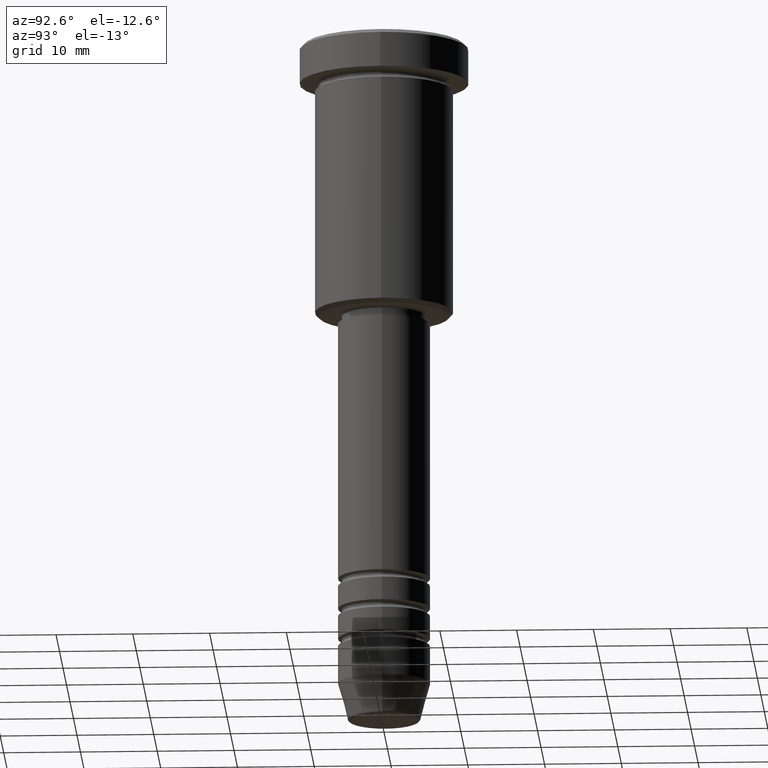
[diagram: clean part render]
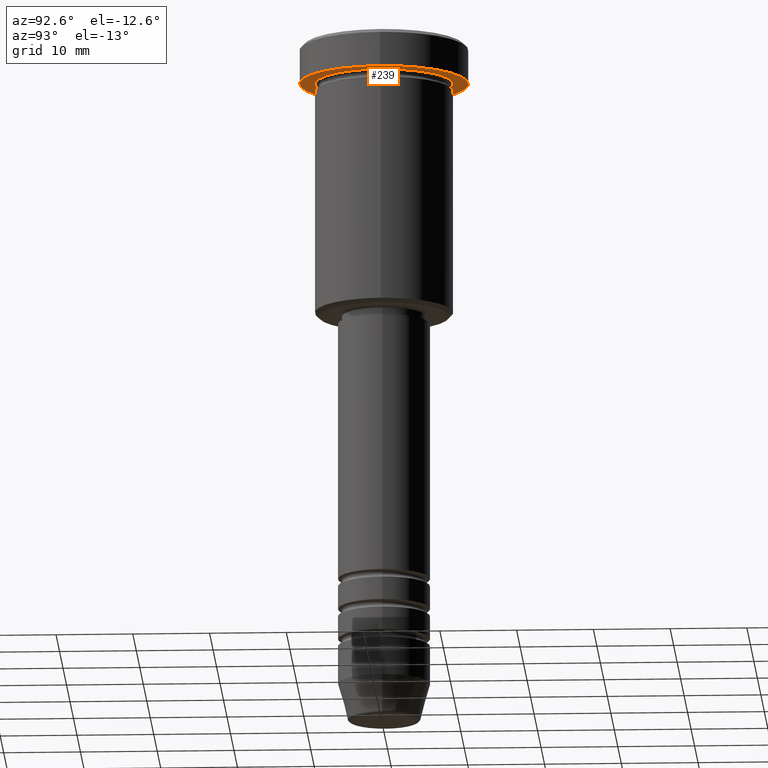
[diagram: same view with one face highlighted and labeled with its STEP entity id]
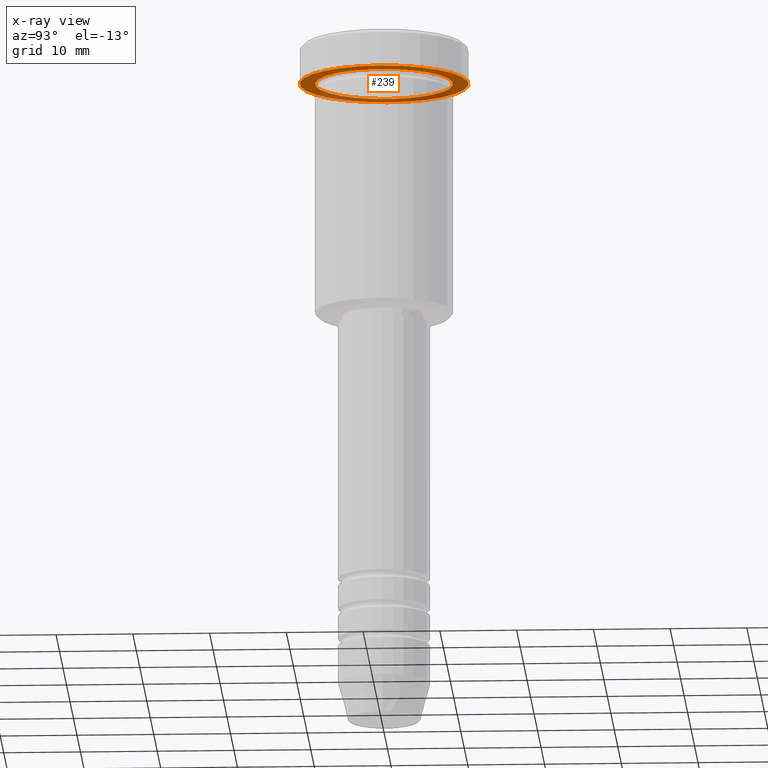
[diagram: x-ray of the same camera — body ghosted, the highlighted face saturated]
A machine part, auxiliary view. The second image highlights one B-rep face of the part: STEP entity #239.
The next image is the same camera in x-ray: the body ghosted, the highlighted face saturated — about 30% of this face is hidden behind the body in this view.
In plain terms, the highlighted planar face has unit normal (0, 0, -1).
Its self-contained STEP definition (entity closure, byte-faithful):
#47 = DIRECTION ( 'NONE',  ( 1.000000000000000000, 0.000000000000000000, 0.000000000000000000 ) ) ;
#50 = AXIS2_PLACEMENT_3D ( 'NONE', #569, #860, #47 ) ;
#84 = EDGE_LOOP ( 'NONE', ( #1122, #542 ) ) ;
#86 = AXIS2_PLACEMENT_3D ( 'NONE', #808, #1175, #173 ) ;
#104 = DIRECTION ( 'NONE',  ( -1.000000000000000000, 0.000000000000000000, -0.000000000000000000 ) ) ;
#111 = CARTESIAN_POINT ( 'NONE',  ( 0.000000000000000000, 11.00000000000000000, -5.000000000000000000 ) ) ;
#126 = VERTEX_POINT ( 'NONE', #723 ) ;
#151 = CARTESIAN_POINT ( 'NONE',  ( 9.000000000000000000, 1.102182119232617714E-15, -4.999999999999999112 ) ) ;
#173 = DIRECTION ( 'NONE',  ( -1.000000000000000000, 0.000000000000000000, 0.000000000000000000 ) ) ;
#185 = FACE_OUTER_BOUND ( 'NONE', #441, .T. ) ;
#187 = ORIENTED_EDGE ( 'NONE', *, *, #666, .F. ) ;
#205 = CARTESIAN_POINT ( 'NONE',  ( 0.000000000000000000, 0.000000000000000000, -5.000000000000000000 ) ) ;
#239 = ADVANCED_FACE ( 'NONE', ( #761, #185 ), #929, .T. ) ;
#303 = DIRECTION ( 'NONE',  ( 1.000000000000000000, 0.000000000000000000, 0.000000000000000000 ) ) ;
#325 = VERTEX_POINT ( 'NONE', #1051 ) ;
#394 = AXIS2_PLACEMENT_3D ( 'NONE', #417, #884, #982 ) ;
#417 = CARTESIAN_POINT ( 'NONE',  ( 0.000000000000000000, 0.000000000000000000, -5.000000000000000000 ) ) ;
#441 = EDGE_LOOP ( 'NONE', ( #774, #187 ) ) ;
#451 = VERTEX_POINT ( 'NONE', #765 ) ;
#501 = VERTEX_POINT ( 'NONE', #151 ) ;
#504 = CIRCLE ( 'NONE', #394, 9.000000000000000000 ) ;
#521 = AXIS2_PLACEMENT_3D ( 'NONE', #111, #651, #104 ) ;
#542 = ORIENTED_EDGE ( 'NONE', *, *, #1021, .T. ) ;
#546 = CIRCLE ( 'NONE', #50, 11.00000000000000000 ) ;
#569 = CARTESIAN_POINT ( 'NONE',  ( 0.000000000000000000, 0.000000000000000000, -5.000000000000000000 ) ) ;
#624 = AXIS2_PLACEMENT_3D ( 'NONE', #205, #906, #303 ) ;
#626 = CIRCLE ( 'NONE', #86, 9.000000000000000000 ) ;
#651 = DIRECTION ( 'NONE',  ( 0.000000000000000000, 0.000000000000000000, -1.000000000000000000 ) ) ;
#666 = EDGE_CURVE ( 'NONE', #451, #325, #1142, .T. ) ;
#722 = EDGE_CURVE ( 'NONE', #325, #451, #546, .T. ) ;
#723 = CARTESIAN_POINT ( 'NONE',  ( -9.000000000000000000, 0.000000000000000000, -4.999999999999999112 ) ) ;
#761 = FACE_BOUND ( 'NONE', #84, .T. ) ;
#765 = CARTESIAN_POINT ( 'NONE',  ( -11.00000000000000000, 1.347111479062088602E-15, -5.000000000000000000 ) ) ;
#774 = ORIENTED_EDGE ( 'NONE', *, *, #722, .F. ) ;
#808 = CARTESIAN_POINT ( 'NONE',  ( 0.000000000000000000, 0.000000000000000000, -5.000000000000000000 ) ) ;
#840 = EDGE_CURVE ( 'NONE', #126, #501, #504, .T. ) ;
#860 = DIRECTION ( 'NONE',  ( -0.000000000000000000, -0.000000000000000000, 1.000000000000000000 ) ) ;
#884 = DIRECTION ( 'NONE',  ( -0.000000000000000000, -0.000000000000000000, 1.000000000000000000 ) ) ;
#906 = DIRECTION ( 'NONE',  ( -0.000000000000000000, -0.000000000000000000, 1.000000000000000000 ) ) ;
#929 = PLANE ( 'NONE',  #521 ) ;
#982 = DIRECTION ( 'NONE',  ( -1.000000000000000000, 0.000000000000000000, 0.000000000000000000 ) ) ;
#1021 = EDGE_CURVE ( 'NONE', #501, #126, #626, .T. ) ;
#1051 = CARTESIAN_POINT ( 'NONE',  ( 11.00000000000000000, 0.000000000000000000, -5.000000000000000000 ) ) ;
#1122 = ORIENTED_EDGE ( 'NONE', *, *, #840, .T. ) ;
#1142 = CIRCLE ( 'NONE', #624, 11.00000000000000000 ) ;
#1175 = DIRECTION ( 'NONE',  ( -0.000000000000000000, -0.000000000000000000, 1.000000000000000000 ) ) ;